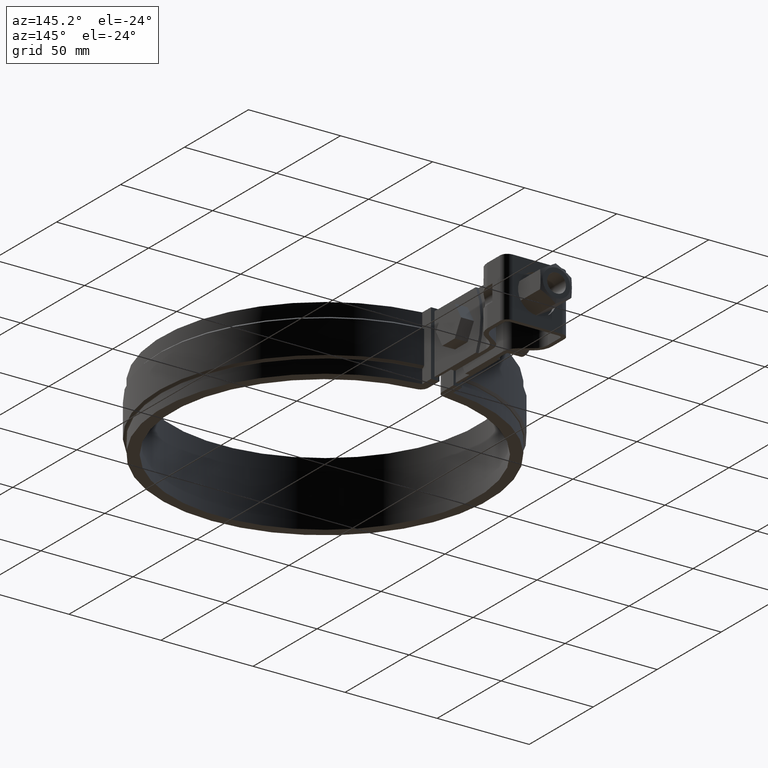
[diagram: clean part render]
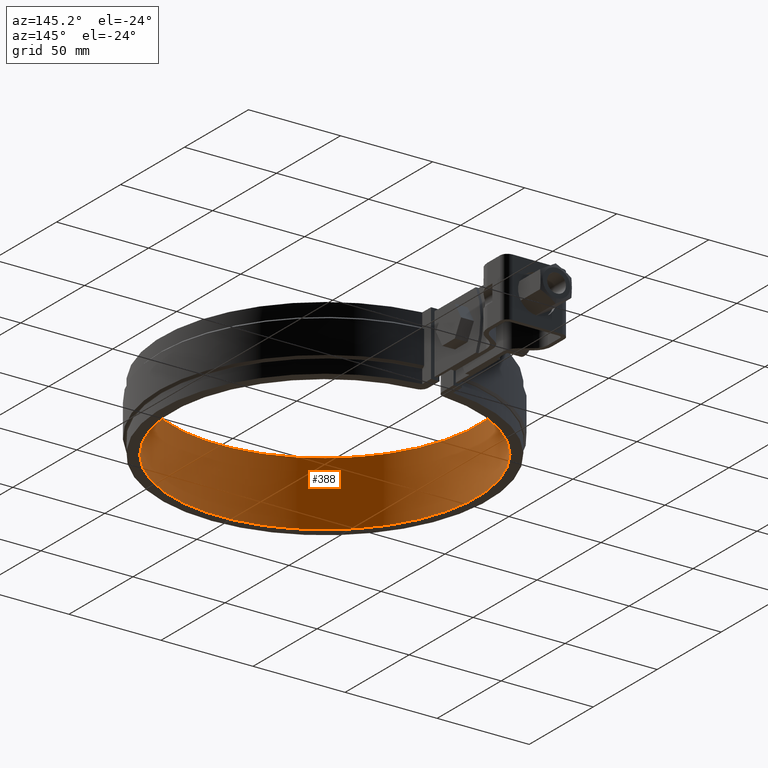
[diagram: same view with one face highlighted and labeled with its STEP entity id]
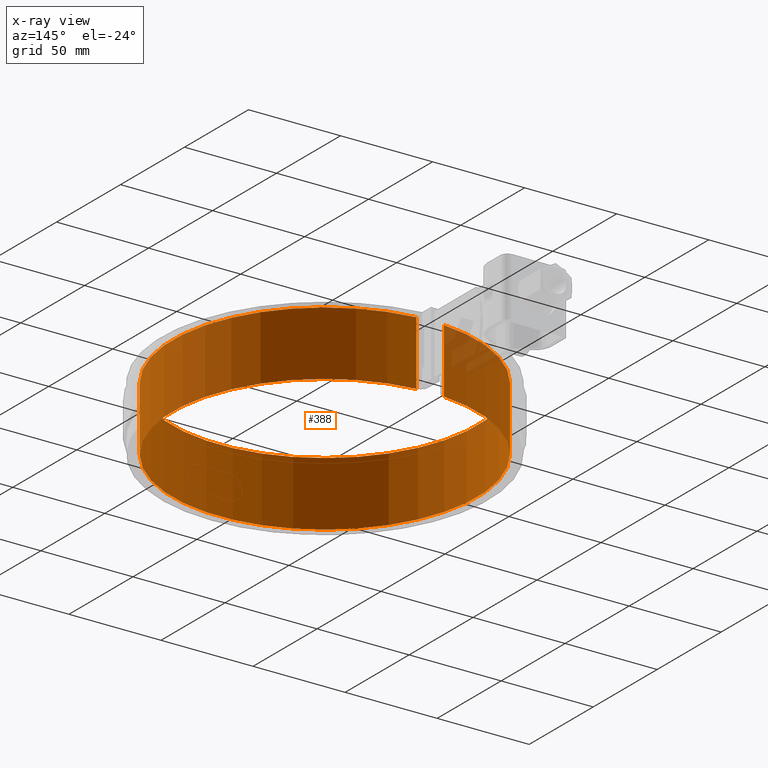
[diagram: x-ray of the same camera — body ghosted, the highlighted face saturated]
A machine part, auxiliary view. The second image highlights one B-rep face of the part: STEP entity #388.
The next image is the same camera in x-ray: the body ghosted, the highlighted face saturated — about 3% of this face is hidden behind the body in this view.
In plain terms, the highlighted cylindrical surface (partial cylindrical patch) has radius 82.6 mm, axis along (-0, 0, 1).
Its self-contained STEP definition (entity closure, byte-faithful):
#388 = ADVANCED_FACE( '', ( #645 ), #646, .F. );
#645 = FACE_OUTER_BOUND( '', #1772, .T. );
#646 = CYLINDRICAL_SURFACE( '', #1773, 82.5999999999999 );
#1772 = EDGE_LOOP( '', ( #4177, #4178, #4179, #4180 ) );
#1773 = AXIS2_PLACEMENT_3D( '', #4181, #4182, #4183 );
#4177 = ORIENTED_EDGE( '', *, *, #5188, .F. );
#4178 = ORIENTED_EDGE( '', *, *, #5213, .F. );
#4179 = ORIENTED_EDGE( '', *, *, #5220, .T. );
#4180 = ORIENTED_EDGE( '', *, *, #5222, .T. );
#4181 = CARTESIAN_POINT( '', ( 1.04083408558608E-014, 1.94289029309402E-013, -33.5000000000000 ) );
#4182 = DIRECTION( '', ( -6.97124570104510E-034, 2.54514470950043E-019, 1.00000000000000 ) );
#4183 = DIRECTION( '', ( 7.06573886201831E-068, 1.00000000000000, -2.54514470950043E-019 ) );
#5188 = EDGE_CURVE( '', #5839, #5841, #5842, .F. );
#5213 = EDGE_CURVE( '', #5876, #5839, #5878, .T. );
#5220 = EDGE_CURVE( '', #5876, #5886, #5888, .F. );
#5222 = EDGE_CURVE( '', #5886, #5841, #5890, .T. );
#5839 = VERTEX_POINT( '', #8329 );
#5841 = VERTEX_POINT( '', #8331 );
#5842 = CIRCLE( '', #8332, 82.5999999999999 );
#5876 = VERTEX_POINT( '', #8808 );
#5878 = LINE( '', #8810, #8811 );
#5886 = VERTEX_POINT( '', #8821 );
#5888 = CIRCLE( '', #8823, 82.5999999999999 );
#5890 = LINE( '', #8826, #8827 );
#8329 = CARTESIAN_POINT( '', ( 7.43972286374134, 82.2642724620520, 1.50000000000000 ) );
#8331 = CARTESIAN_POINT( '', ( -7.43972286374142, 82.2642724620520, 1.50000000000000 ) );
#8332 = AXIS2_PLACEMENT_3D( '', #9846, #9847, #9848 );
#8808 = CARTESIAN_POINT( '', ( 7.43972286374134, 82.2642724620520, -33.5000000000000 ) );
#8810 = CARTESIAN_POINT( '', ( 7.43972286374133, 82.2642724620520, -33.5000000000000 ) );
#8811 = VECTOR( '', #9869, 1000.00000000000 );
#8821 = CARTESIAN_POINT( '', ( -7.43972286374142, 82.2642724620520, -33.5000000000000 ) );
#8823 = AXIS2_PLACEMENT_3D( '', #9884, #9885, #9886 );
#8826 = CARTESIAN_POINT( '', ( -7.43972286374149, 82.2642724620520, -33.5000000000000 ) );
#8827 = VECTOR( '', #9888, 1000.00000000000 );
#9846 = CARTESIAN_POINT( '', ( 1.04083408558608E-014, 1.94297937315885E-013, 1.50000000000000 ) );
#9847 = DIRECTION( '', ( -1.77428291146426E-052, 2.54514470950043E-019, 1.00000000000000 ) );
#9848 = DIRECTION( '', ( 0.000000000000000, -1.00000000000000, 2.54514470950043E-019 ) );
#9869 = DIRECTION( '', ( -6.97124570104510E-034, 2.54514470950043E-019, 1.00000000000000 ) );
#9884 = CARTESIAN_POINT( '', ( 1.04083408558608E-014, 1.94289029309402E-013, -33.5000000000000 ) );
#9885 = DIRECTION( '', ( -1.77428291146426E-052, 2.54514470950043E-019, 1.00000000000000 ) );
#9886 = DIRECTION( '', ( 0.000000000000000, -1.00000000000000, 2.54514470950043E-019 ) );
#9888 = DIRECTION( '', ( -6.97124570104510E-034, 2.54514470950043E-019, 1.00000000000000 ) );